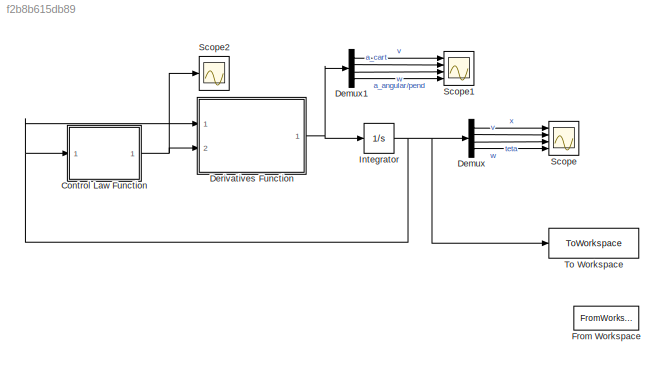
MODEL slx_f2b8b615db89
KIND model
CONFIG AbsTol = auto
CONFIG EnableMultiTasking = off
CONFIG FixedStep = auto
CONFIG InitFcn = INITexp\n
CONFIG MaxStep = auto
CONFIG MinStep = auto
CONFIG RelTol = 1e-3
CONFIG SampleTimeConstraint = Unconstrained
CONFIG Solver = VariableStepAuto
CONFIG SolverName = VariableStepAuto
CONFIG StartTime = 0.0
CONFIG StopTime = 75
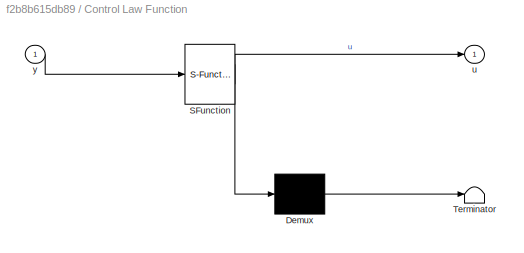
BLOCK [SubSystem] Control Law Function
  ErrorFcn = Stateflow.Translate.translate
  PermitHierarchicalResolution = ExplicitOnly
  Ports = [1, 1]
  RequestExecContextInheritance = off
  SFBlockType = MATLAB Function
  TreatAsAtomicUnit = on
BLOCK [Demux] Control Law Function/ Demux 
  Outputs = 1
  Ports = [1, 1]
BLOCK [S-Function] Control Law Function/ SFunction 
  EnableBusSupport = on
  FunctionName = sf_sfun
  Parameters = K,L,M,d,g,m
  PortCounts = [1 2]
  Ports = [1, 2]
  SFcnIsStateOwnerBlock = off
  SFunctionDeploymentMode = off
  Tag = Stateflow S-Function 1
BLOCK [Terminator] Control Law Function/ Terminator 
BLOCK [Outport] Control Law Function/u
  VectorParamsAs1DForOutWhenUnconnected = off
BLOCK [Inport] Control Law Function/y
BLOCK [Demux] Demux
  Ports = [1, 4]
BLOCK [Demux] Demux1
  Ports = [1, 4]
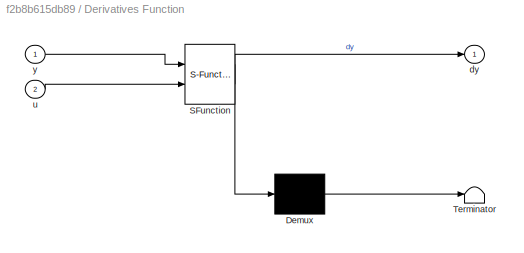
BLOCK [SubSystem] Derivatives Function
  ErrorFcn = Stateflow.Translate.translate
  PermitHierarchicalResolution = ExplicitOnly
  Ports = [2, 1]
  RequestExecContextInheritance = off
  SFBlockType = MATLAB Function
  TreatAsAtomicUnit = on
BLOCK [Demux] Derivatives Function/ Demux 
  Outputs = 1
  Ports = [1, 1]
BLOCK [S-Function] Derivatives Function/ SFunction 
  EnableBusSupport = on
  FunctionName = sf_sfun
  Parameters = K,L,M,d,g,m
  PortCounts = [2 2]
  Ports = [2, 2]
  SFcnIsStateOwnerBlock = off
  SFunctionDeploymentMode = off
  Tag = Stateflow S-Function 2
BLOCK [Terminator] Derivatives Function/ Terminator 
BLOCK [Outport] Derivatives Function/dy
  VectorParamsAs1DForOutWhenUnconnected = off
BLOCK [Inport] Derivatives Function/u
  Port = 2
BLOCK [Inport] Derivatives Function/y
BLOCK [FromWorkspace] From Workspace
  NameLocation = top
  VariableName = simout
BLOCK [Integrator] Integrator
  InitialCondition = y0
  Ports = [1, 1]
BLOCK [Scope] Scope
  Floating = off
  NumInputPorts = 4
  Ports = [4]
  ScopeSpecificationString = Simulink.scopes.TimeScopeBlockCfg('CurrentConfiguration', extmgr.ConfigurationSet(extmgr.Configuration('Core','General UI',true),extmgr.Configuration('Core','Source UI',true),extmgr.Configuration('Sources','WiredSimulink',true),extmgr.Configuration('Visuals','Time Domain',true,'SerializedDisplays',{struct('MinYLimReal','-0.05075','MaxYLimReal','0.1732','YLabelReal','','MinYLimMag','0.00000','MaxYL...<+3352ch>
BLOCK [Scope] Scope1
  Floating = off
  NumInputPorts = 4
  Ports = [4]
  ScopeSpecificationString = Simulink.scopes.TimeScopeBlockCfg('CurrentConfiguration', extmgr.ConfigurationSet(extmgr.Configuration('Core','General UI',true),extmgr.Configuration('Core','Source UI',true),extmgr.Configuration('Sources','WiredSimulink',true,'DataLoggingVariableName','ScopeData1'),extmgr.Configuration('Visuals','Time Domain',true,'SerializedDisplays',{struct('MinYLimReal','-1.47205','MaxYLimReal','1.40323','YLab...<+3419ch>
BLOCK [Scope] Scope2
  Floating = off
  NumInputPorts = 1
  Ports = [1]
  ScopeSpecificationString = Simulink.scopes.TimeScopeBlockCfg('CurrentConfiguration', extmgr.ConfigurationSet(extmgr.Configuration('Core','General UI',true),extmgr.Configuration('Core','Source UI',true),extmgr.Configuration('Sources','WiredSimulink',true,'DataLoggingVariableName','ScopeData1'),extmgr.Configuration('Visuals','Time Domain',true,'SerializedDisplays',{struct('MinYLimReal','-21.41158','MaxYLimReal','30.58264','YL...<+1513ch>
BLOCK [ToWorkspace] To Workspace
  FixptAsFi = on
  MaxDataPoints = inf
  Ports = [1]
  SampleTime = -1
  SaveFormat = Timeseries
  VariableName = simout
NET Control Law Function:1 -> Derivatives Function:2, Scope2:1
LINE Demux1:1 -> Scope1:1
LINE Demux1:2 -> Scope1:2
LINE Demux1:3 -> Scope1:3
LINE Demux1:4 -> Scope1:4
LINE Demux:1 -> Scope:1
LINE Demux:2 -> Scope:2
LINE Demux:3 -> Scope:3
LINE Demux:4 -> Scope:4
NET Derivatives Function:1 -> Demux1:1, Integrator:1
NET Integrator:1 -> Control Law Function:1, Demux:1, Derivatives Function:1, To Workspace:1
note: NET lines group one-source signal fan-out (src -> all destinations, sorted); 1:1 wires keep LINE
CHART Control Law Function states=1 transitions=1
  STATE_LABEL 'eML_blk_kernel()'
  STATE_LABEL 'SCRIPT:\nfunction u = calc_u_exp(y,m, M, L, g, d, K)\n% y = [x , ^x, o , ^o] states , y=xdot\n% M massa do carro, m massa do pendulo, L tamanho do fio\n% d fricçao, g grav no pendulo\ndy=0*y;\nSy = sin(y(3));\nCy = cos(y(3));\nD = m*L*L*(M+m*(1-Cy^2));\n\n% setpoints\n% newx = [2; 0; pi; 0];\nnewx = [0; 0; pi; 0];\n\n% if(t>12)\n%     newx = [-1; 0; pi; 0]; \n% end \n\n% open loop (no control)\n% if(t>29)\n%   u = 0...<+630ch>'
CHART Derivatives Function states=1 transitions=1
  STATE_LABEL 'eML_blk_kernel()'
  STATE_LABEL 'SCRIPT:\nfunction dy = derivativesexp(y,m, M, L, g, d, K,u)\n% y = [x , ^x, o , ^o] states , y=xdot\n% M massa do carro, m massa do pendulo, L tamanho do fio\n% d fricçao, g grav no pendulo\ndy=0*y;\nSy = sin(y(3));\nCy = cos(y(3));\nD = m*L*L*(M+m*(1-Cy^2));\n\n% setpoints\n% newx = [2; 0; pi; 0];\nnewx = [0; 0; pi; 0];\n\n% if(t>12)\n%     newx = [-1; 0; pi; 0]; \n% end \n\n% open loop (no control)\n% if(t>29)\n% ...<+998ch>'
CHART  states=0 transitions=0
CHART  states=0 transitions=0
